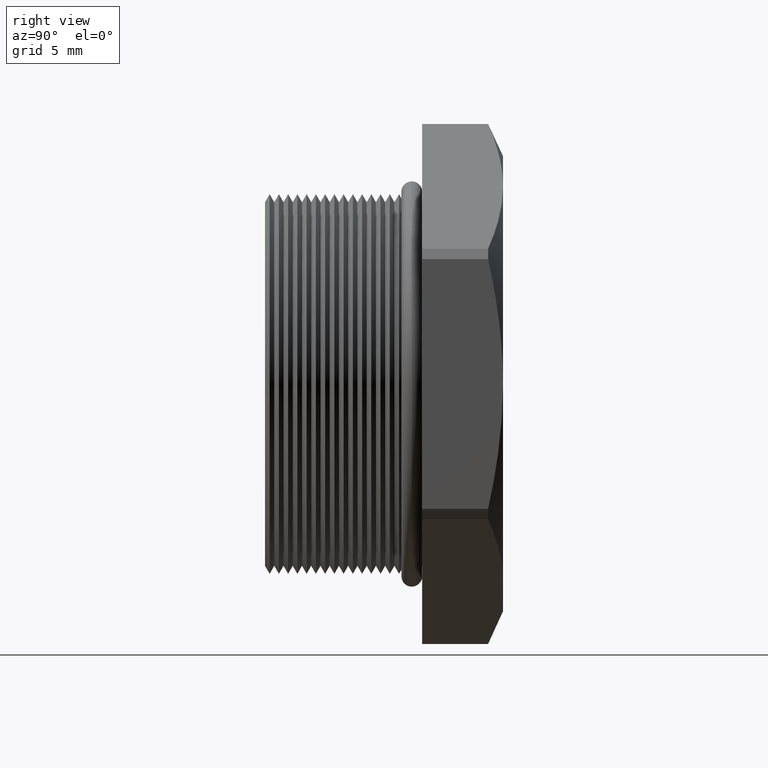
[diagram: clean part render]
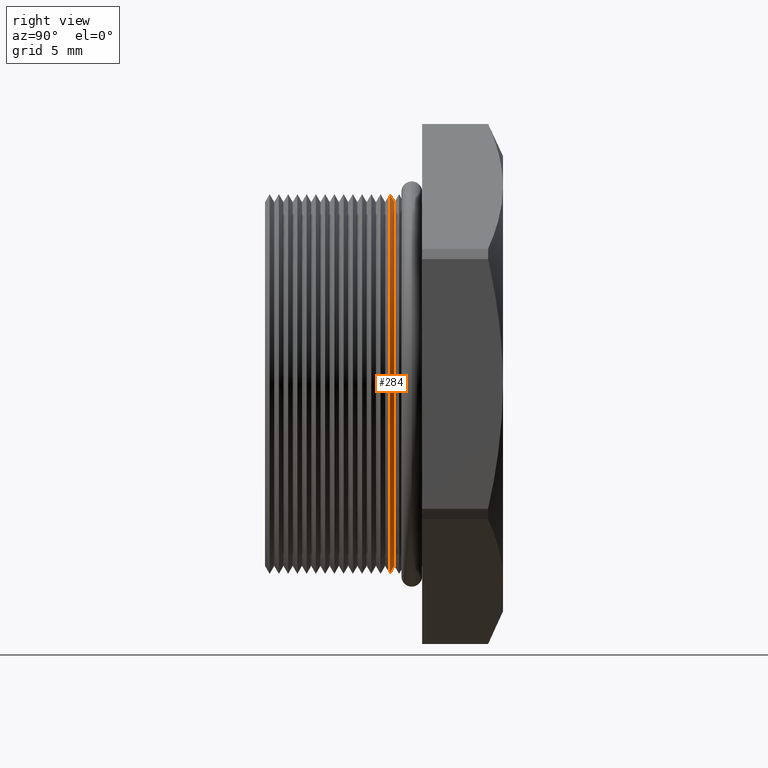
[diagram: same view with one face highlighted and labeled with its STEP entity id]
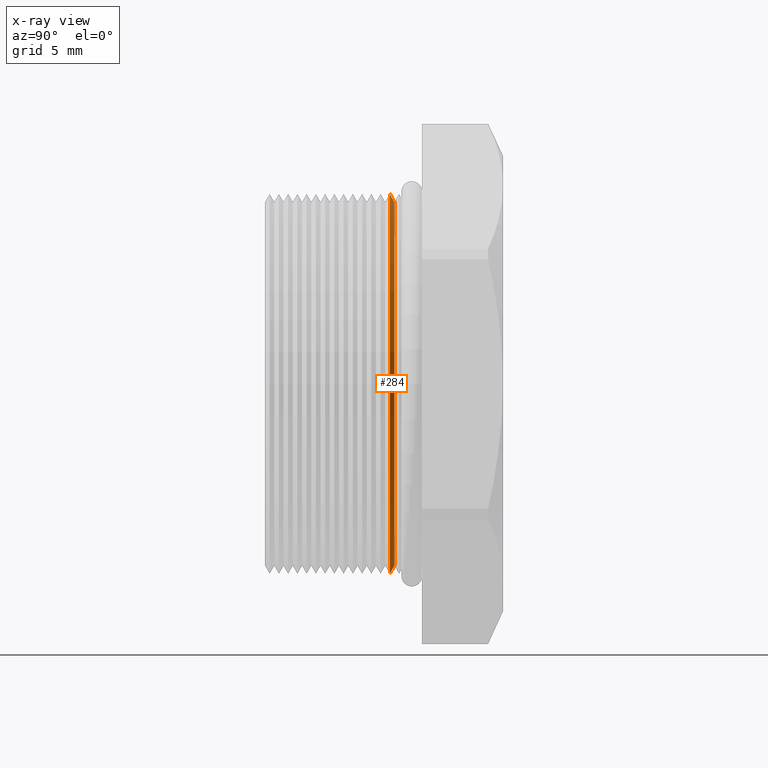
[diagram: x-ray of the same camera — body ghosted, the highlighted face saturated]
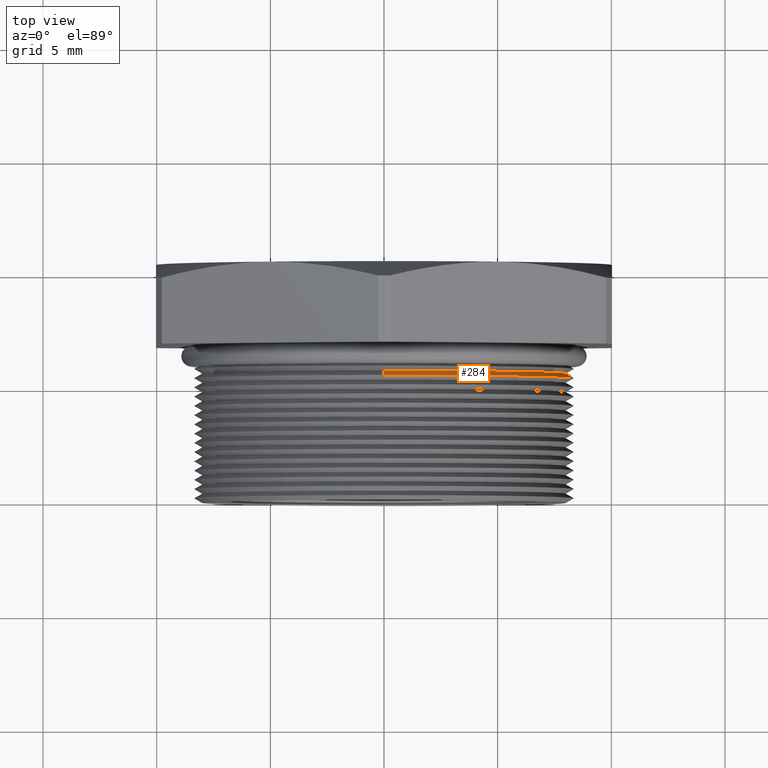
[diagram: same view with one face highlighted and labeled with its STEP entity id]
A machine part, right view. The second image highlights one B-rep face of the part: STEP entity #284.
The next image is the same camera in x-ray: the body ghosted, the highlighted face saturated — about 0% of this face is hidden behind the body in this view.
A second angle (top view) of the same face is appended — the face is thin or edge-on in the first view.
In plain terms, the highlighted conical surface has half-angle 60 deg.
Its self-contained STEP definition (entity closure, byte-faithful):
#278 = VERTEX_POINT ( 'NONE', #2979 ) ;
#280 = EDGE_CURVE ( 'NONE', #281, #278, #2978, .T. ) ;
#281 = VERTEX_POINT ( 'NONE', #2973 ) ;
#284 = ADVANCED_FACE ( 'NONE', ( #2968 ), #2967, .T. ) ;
#285 = EDGE_LOOP ( 'NONE', ( #286, #343, #345, #346 ) ) ;
#286 = ORIENTED_EDGE ( 'NONE', *, *, #340, .T. ) ;
#340 = EDGE_CURVE ( 'NONE', #341, #342, #3099, .T. ) ;
#341 = VERTEX_POINT ( 'NONE', #3094 ) ;
#342 = VERTEX_POINT ( 'NONE', #3093 ) ;
#343 = ORIENTED_EDGE ( 'NONE', *, *, #344, .T. ) ;
#344 = EDGE_CURVE ( 'NONE', #342, #281, #3155, .T. ) ;
#345 = ORIENTED_EDGE ( 'NONE', *, *, #280, .T. ) ;
#346 = ORIENTED_EDGE ( 'NONE', *, *, #347, .F. ) ;
#347 = EDGE_CURVE ( 'NONE', #341, #278, #3151, .T. ) ;
#2966 = CARTESIAN_POINT ( 'NONE',  ( 0.0000000000000000000, 0.2194972448100089300, 0.0000000000000000000 ) ) ;
#2967 = CONICAL_SURFACE ( 'NONE', #3029, 0.3150000000000000000, 1.047197551196598700 ) ;
#2968 = FACE_OUTER_BOUND ( 'NONE', #285, .T. ) ;
#2973 = CARTESIAN_POINT ( 'NONE',  ( 4.026318816969966200E-017, 0.2115448905829480100, 0.3287738815610546400 ) ) ;
#2974 = DIRECTION ( 'NONE',  ( 0.0000000000000000000, 0.0000000000000000000, 1.000000000000000000 ) ) ;
#2975 = DIRECTION ( 'NONE',  ( -0.0000000000000000000, 1.000000000000000000, -0.0000000000000000000 ) ) ;
#2976 = CARTESIAN_POINT ( 'NONE',  ( 0.0000000000000000000, 0.2115448905829480100, 0.0000000000000000000 ) ) ;
#2977 = AXIS2_PLACEMENT_3D ( 'NONE', #2976, #2975, #2974 ) ;
#2978 = CIRCLE ( 'NONE', #2977, 0.3287738815610546400 ) ;
#2979 = CARTESIAN_POINT ( 'NONE',  ( 0.0000000000000000000, 0.2115448905829480100, -0.3287738815610546400 ) ) ;
#3027 = DIRECTION ( 'NONE',  ( 0.0000000000000000000, 0.0000000000000000000, -1.000000000000000000 ) ) ;
#3028 = DIRECTION ( 'NONE',  ( 0.0000000000000000000, -1.000000000000000000, 0.0000000000000000000 ) ) ;
#3029 = AXIS2_PLACEMENT_3D ( 'NONE', #2966, #3028, #3027 ) ;
#3093 = CARTESIAN_POINT ( 'NONE',  ( 3.857637417314162700E-017, 0.2194972448100089300, 0.3150000000000000000 ) ) ;
#3094 = CARTESIAN_POINT ( 'NONE',  ( 0.0000000000000000000, 0.2194972448100089300, -0.3150000000000000000 ) ) ;
#3095 = DIRECTION ( 'NONE',  ( 0.0000000000000000000, 0.0000000000000000000, -1.000000000000000000 ) ) ;
#3096 = DIRECTION ( 'NONE',  ( 0.0000000000000000000, -1.000000000000000000, 0.0000000000000000000 ) ) ;
#3097 = CARTESIAN_POINT ( 'NONE',  ( 0.0000000000000000000, 0.2194972448100089300, 0.0000000000000000000 ) ) ;
#3098 = AXIS2_PLACEMENT_3D ( 'NONE', #3097, #3096, #3095 ) ;
#3099 = CIRCLE ( 'NONE', #3098, 0.3150000000000000000 ) ;
#3148 = DIRECTION ( 'NONE',  ( 0.0000000000000000000, -0.4999999999999991100, -0.8660254037844391500 ) ) ;
#3149 = VECTOR ( 'NONE', #3148, 39.37007874015748100 ) ;
#3150 = CARTESIAN_POINT ( 'NONE',  ( 0.0000000000000000000, 0.2194972448100089300, -0.3150000000000000000 ) ) ;
#3151 = LINE ( 'NONE', #3150, #3149 ) ;
#3152 = DIRECTION ( 'NONE',  ( 1.060575238724907500E-016, -0.4999999999999991100, 0.8660254037844391500 ) ) ;
#3153 = VECTOR ( 'NONE', #3152, 39.37007874015748100 ) ;
#3154 = CARTESIAN_POINT ( 'NONE',  ( 3.857637417314162700E-017, 0.2194972448100089300, 0.3150000000000000000 ) ) ;
#3155 = LINE ( 'NONE', #3154, #3153 ) ;